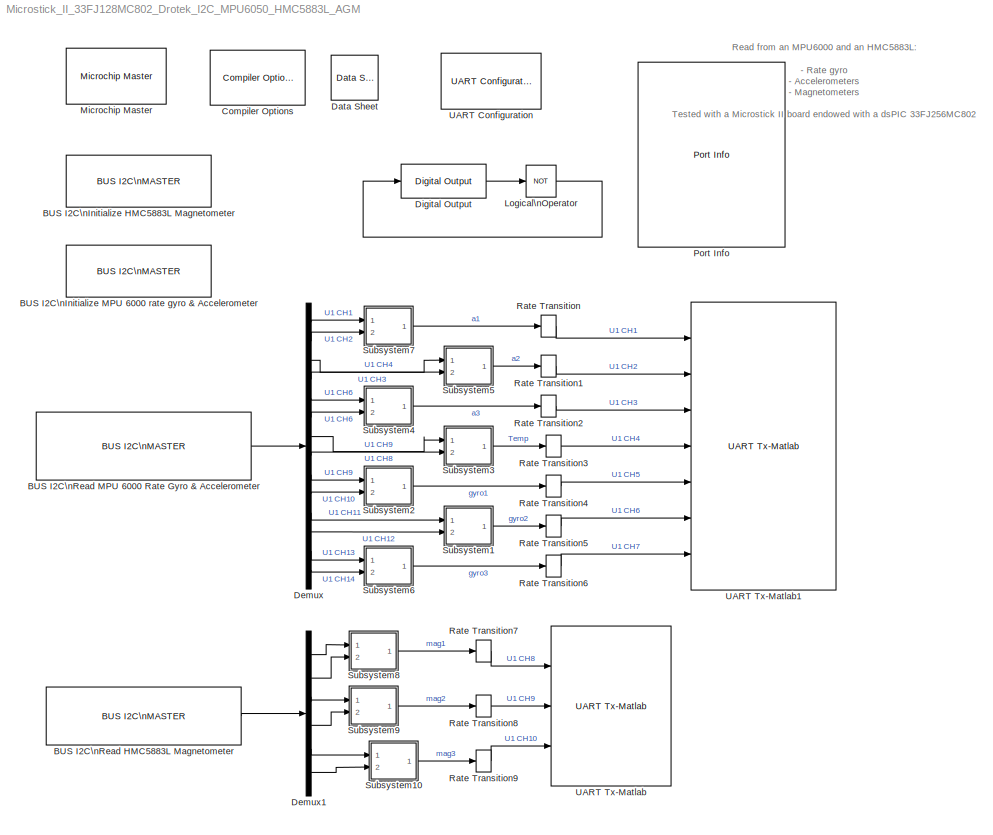
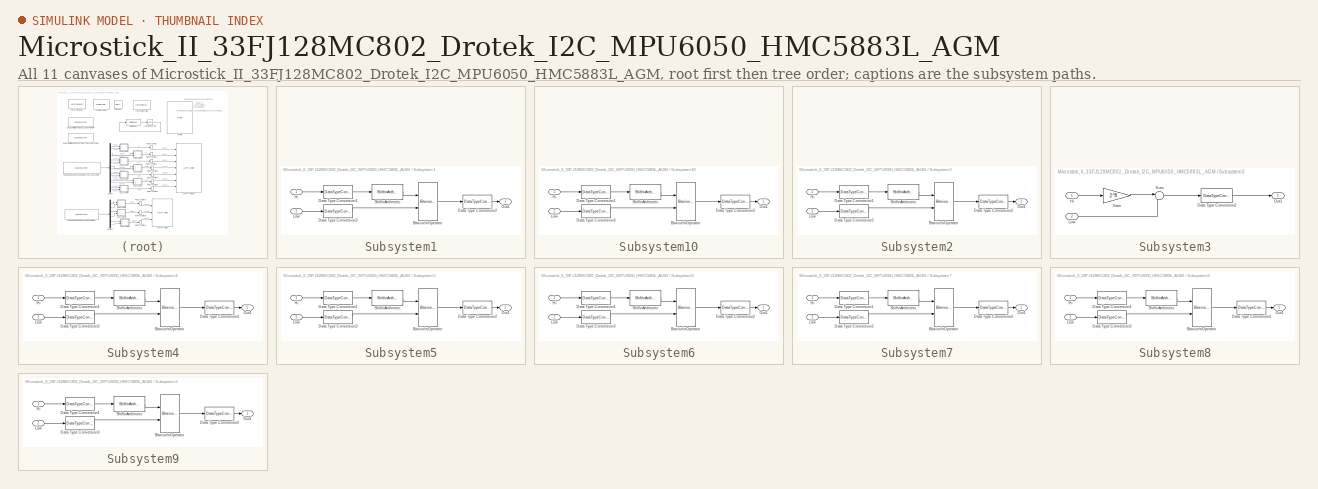
[diagram: thumbnail index - all 11 canvases of the model, root first then tree order]
MODEL Microstick_II_33FJ128MC802_Drotek_I2C_MPU6050_HMC5883L_AGM
KIND model
BLOCK [Reference] BUS I2C\nInitialize HMC5883L Magnetometer  REF=MCHP_Blockset/BUS I2C/BUS I2C\nMASTER
  BlockingMode = off
  I2CRef = 1
  I2C_IntPriority = 5
  I2Csequence_num = [BFF0000000000000 40E0600000000000 41186A0000000000 4118666E3C87173F]$[4070000000000000]$[0000000000000000 40E0600000000000 40F86A0000000000 410065D9C7810E65]$[3FF0000000000000 40E0600000000000 41186A0000000000 4118666E3C87173F]$[4040000000000000 0000000000000000 0000000000000000 403E000000000000]$[4050000000000000 3FF0000000000000 0000000000000000 0000000000000000 405E000000000000 000000000000000...<+159ch>
  I2Csequence_txt = Initial-Configuration$     ---     $Update-Configuration$Start$Write Address:{[0x1E]}    % HMC5883L Address$Write Data (x1)  Write:{[0x00 0x78 0x00 0x00]}      % Configure$Stop$Update-Configuration
  InitialConfigurationNum = 0
  MCHP_MASTERLINK = Microstick_II_33FJ128MC802_Drotek_I2C_MPU6050_HMC5883L_AGM/Microchip Master
  MCHP_PORT = {I2C 1 Clock}{SCL1}13:0:B8;{I2C 1 SDA}{SDA1}13:0:B9;
  ORDERING = 0
  PIN_SCL_TXT = B8 / Pin[17]
  PIN_SDA_TXT = B9 / Pin[18]
  Ports = []
  SID = 114
  S_INPUT = [5  5]
  S_INPUT_Size = [2  2]
  S_OUTPUT = [5]
  S_OUTPUT_Size = [4]
  SampleTime = inf
  SourceBlock = MCHP_Blockset/BUS I2C/BUS I2C\nMASTER
  SourceType = I2C Driver
BLOCK [Reference] BUS I2C\nInitialize MPU 6000 rate gyro & Accelerometer  REF=MCHP_Blockset/BUS I2C/BUS I2C\nMASTER
  BlockingMode = off
  I2CRef = 1
  I2C_IntPriority = 5
  I2Csequence_num = [BFF0000000000000 40E0600000000000 41186A0000000000 4118666E3C87173F]$[4070000000000000]$[3FF0000000000000 40E0200000000000 40F86A0000000000 40F866E066594CA2]$[4040000000000000 0000000000000000 0000000000000000 405A400000000000]$[4050000000000000 3FF0000000000000 0000000000000000 405AC00000000000 3FF0000000000000]$[4000000000000000 40E0600000000000 40F86A0000000000 40F866E066594CA2]$[3FF0000000000...<+282ch>
  I2Csequence_txt = Initial-Configuration$     ---     $Start$Write Address:{[0x69]}    % MPU 6000 addr with AD0 = 1$Write Data (x1)  Write:{[0x6B 0x01]}      % conf Pow Mngt 1$Stop$Start$Write Address:{[0x69]}    % MPU 6000 addr with AD0 = 1$Write Data (x1)  Write:{[0x37 0x02]}      % I2C Bypass$Stop
  InitialConfigurationNum = 0
  MCHP_MASTERLINK = Microstick_II_33FJ128MC802_Drotek_I2C_MPU6050_HMC5883L_AGM/Microchip Master
  MCHP_PORT = {I2C 1 Clock}{SCL1}13:0:B8;{I2C 1 SDA}{SDA1}13:0:B9;
  ORDERING = 0
  PIN_SCL_TXT = B8 / Pin[17]
  PIN_SDA_TXT = B9 / Pin[18]
  Ports = []
  SID = 113
  S_INPUT = [5  5]
  S_INPUT_Size = [2  2]
  S_OUTPUT = [5]
  S_OUTPUT_Size = [4]
  SampleTime = inf
  SourceBlock = MCHP_Blockset/BUS I2C/BUS I2C\nMASTER
  SourceType = I2C Driver
BLOCK [Reference] BUS I2C\nRead HMC5883L Magnetometer  REF=MCHP_Blockset/BUS I2C/BUS I2C\nMASTER
  BlockingMode = off
  I2CRef = 1
  I2C_IntPriority = 5
  I2Csequence_num = [BFF0000000000000 40E0600000000000 41186A0000000000 4118666E3C87173F]$[4070000000000000]$[0000000000000000 40E0600000000000 40F86A0000000000 410065D9C7810E65]$[3FF0000000000000 40E0200000000000 40F86A0000000000 40F866E066594CA2]$[4040000000000000 0000000000000000 0000000000000000 403E000000000000]$[4050000000000000 3FF0000000000000 0000000000000000 4008000000000000]$[4000000000000000 40E0600000000...<+354ch>
  I2Csequence_txt = Initial-Configuration$     ---     $Update-Configuration$Start$Write Address:{[0x1E]}    % HMC5883L Address$Write Data (x1)  Write:{[0x3]}  $Stop$Start$Write Address:{[0x1E]}    % HMC5883L Address$Read Data (x6)  Read:{Magn xyz}$Stop$Update-Configuration
  InitialConfigurationNum = 0
  MCHP_MASTERLINK = Microstick_II_33FJ128MC802_Drotek_I2C_MPU6050_HMC5883L_AGM/Microchip Master
  MCHP_PORT = {I2C 1 Clock}{SCL1}13:0:B8;{I2C 1 SDA}{SDA1}13:0:B9;
  ORDERING = 0
  PIN_SCL_TXT = B8 / Pin[17]
  PIN_SDA_TXT = B9 / Pin[18]
  Ports = [0, 1]
  SID = 21
  S_INPUT = [5  5]
  S_INPUT_Size = [2  2]
  S_OUTPUT = [5]
  S_OUTPUT_Size = [4]
  SampleTime = [.01]
  SourceBlock = MCHP_Blockset/BUS I2C/BUS I2C\nMASTER
  SourceType = I2C Driver
BLOCK [Reference] BUS I2C\nRead MPU 6000 Rate Gyro & Accelerometer  REF=MCHP_Blockset/BUS I2C/BUS I2C\nMASTER
  BlockingMode = off
  I2CRef = 1
  I2C_IntPriority = 5
  I2Csequence_num = [BFF0000000000000 40E0600000000000 41186A0000000000 4118666E3C87173F]$[4070000000000000]$[3FF0000000000000 40E0200000000000 40F86A0000000000 40F866E066594CA2]$[4040000000000000 0000000000000000 0000000000000000 405A400000000000]$[4050000000000000 3FF0000000000000 0000000000000000 404D800000000000]$[4000000000000000 40E0600000000000 40F86A0000000000 40F866E066594CA2]$[3FF0000000000000 40E0600000000...<+214ch>
  I2Csequence_txt = Initial-Configuration$     ---     $Start$Write Address:{[0x69]}    % MPU 6000 addr with AD0 = 1$Write Data (x1)  Write:{[0x3B]}      % Addr Accel Xout$Stop$Start$Write Address:{[0x69]}    % MPU 6000 addr with AD0 = 1$Read Data (x14)  Read:{Acc Gyr xyz}$Stop
  InitialConfigurationNum = 0
  MCHP_MASTERLINK = Microstick_II_33FJ128MC802_Drotek_I2C_MPU6050_HMC5883L_AGM/Microchip Master
  MCHP_PORT = {I2C 1 Clock}{SCL1}13:0:B8;{I2C 1 SDA}{SDA1}13:0:B9;
  ORDERING = 0
  PIN_SCL_TXT = B8 / Pin[17]
  PIN_SDA_TXT = B9 / Pin[18]
  Ports = [0, 1]
  SID = 20
  S_INPUT = [5  5]
  S_INPUT_Size = [2  2]
  S_OUTPUT = [5]
  S_OUTPUT_Size = [4]
  SampleTime = [.001]
  SourceBlock = MCHP_Blockset/BUS I2C/BUS I2C\nMASTER
  SourceType = I2C Driver
BLOCK [Reference] Compiler Options  REF=MCHP_Blockset/System Configuration/Compiler Options
  AssemblyListing = off
  COMP_LIST = Dynamic Options
  COMP_LIST_TXT = xc16 - v1.26
  DEBUG_INFO = off
  HEAP_SIZE = 0
  LATEST_CMPLR = on
  MCHP_MASTERLINK = Microstick_II_33FJ128MC802_Drotek_I2C_MPU6050_HMC5883L_AGM/Microchip Master
  MCHP_MULTITHREAD_COMPILATION = on
  MCODE = is less than 32768 (faster)
  MCONST = in code memory
  MDATA = Use only memory below address 8192 (faster)
  MPLAB_LINKLIB = default
  MPLAB_LINKLIB1 = default
  MSCALAR = Use only memory below address 8192 (faster)
  OMF = elf
  OMIT_FRAME_POINTER = off
  OPTIMIZATION_LEVEL = 3
  PROCEDURAL_ABSTRACTION = off
  Ports = []
  Priority = 1
  ProduceHexOutput = on
  SID = 2
  SourceBlock = MCHP_Blockset/System Configuration/Compiler Options
  UNROLL_LOOPS = on
  USE_64BIT_DOUBLE = off
BLOCK [Reference] Data Sheet  REF=MCHP_Blockset/System Info/Data Sheet
  AttributesFormatString = %<cpy_MCHP_Id>
  DOC_FileLastCheckTime = [0 0 0 0 0 0]
  DOC_MCHP_Id = 33FJ64MC802
  DOC_Type = datasheet
  MCHP_MASTERLINK = Microstick_II_33FJ128MC802_Drotek_I2C_MPU6050_HMC5883L_AGM/Microchip Master
  Ports = []
  SID = 6
  SourceBlock = MCHP_Blockset/System Info/Data Sheet
  cpy_MCHP_Id = 33FJ128MC802
BLOCK [Demux] Demux
  DisplayOption = bar
  Outputs = 14
  Ports = [1, 14]
  SID = 22
BLOCK [Demux] Demux1
  DisplayOption = bar
  Outputs = 6
  Ports = [1, 6]
  SID = 84
BLOCK [Reference] Digital Output  REF=MCHP_Blockset/Digital IO/Digital Output
  FunctionWithSeparateData = off
  MCHP_MASTERLINK = Microstick_II_33FJ128MC802_Drotek_I2C_MPU6050_HMC5883L_AGM/Microchip Master
  ORDERING = None
  PACK = off
  PIN = 0
  PORT = Dynamic Options
  PORT_TXT = A   [ 0 : 4 ]
  Ports = [1, 1]
  READPREVIOUS = on
  RTWMemSecDataConstants = Inherit from model
  RTWMemSecDataInternal = Inherit from model
  RTWMemSecDataParameters = Inherit from model
  RTWMemSecFuncExecute = Inherit from model
  RTWMemSecFuncInitTerm = Inherit from model
  SID = 9
  SIMULTANEOUS = off
  SampleTime = .05
  ShowPortLabels = FromPortIcon
  SourceBlock = MCHP_Blockset/Digital IO/Digital Output
  SystemSampleTime = -1
BLOCK [Logic] Logical\nOperator
  AllPortsSameDT = off
  Operator = NOT
  OutDataTypeMode = boolean
  OutDataTypeStr = boolean
  Ports = [1, 1]
  SID = 11
BLOCK [Reference] Microchip Master  REF=MCHP_Blockset/System Configuration/Microchip Master
  ACTIV_PLL = on
  ACTIV_PLL_spd = on
  AIVTDIS = Disable Alternate Vector Table
  ALTADREF = AVREF+/AVREF- are mapped to RA9/RA10
  ALTCMPI = C1INC is on RB13; C2INC is on RB9 and C3INC is on RA0
  ALTCVREF = CVREF+/CVREF- are mapped to RA9/RA10
  ALTI2C = I2C mapped to SDA1/SCL1 pins
  ALTI2C1 = I2C1 mapped to ASDA1/ASCL1 pins
  ALTI2C2 = I2C2 mapped to SDA2/SCL2 pins
  ALTPMP = EPMP pins are in default location mode
  ALTQIO = QEA1; QEB1; INDX1 are selected as inputs to QEI1
  ALTRB6 = Append the RP6/ASCL1/PMPD6 functions of RB6 to RA1 pin functions
  ALTSS1 = SS1A is selected as the I/O pin for SPI1
  ALTVREF = Voltage reference input; ADC =RA9/RA10 Comparator =RA9;RA10
  APL = Aux Flash Code protect is disabled
  APLK = Aux Flash Write Protection or Code Protection is Enabled
  ATMOD8 = Not used
  AWRP = Aux Flash may be written
  BACKBUG = Not used
  BKBUG = Device resets into Operational mode
  BODENV = 2.7V
  BOOTISA = Boot code and Exception code is MIPS32
  BOREN = Disable
  BOREN0 = Enabled
  BOREN1 = BOR Enabled [When BOREN=1]
  BORV = Brown-out Reset set at 2.0V
  BSEN = No Boot Segment
  BSLIM = Not used
  BSS = No boot program Flash segment
  BSS2 = No Boot Segment
  BTMODE = Device is in Single Boot (legacy) mode
  BTSWP = Not used
  BUSYFLAG = Dynamic Options
  BUSYFLAG_TXT = None
  BWP = Protection Disabled
  BWRP = Boot Segment may be written
  CMPPOL0 = Hysteresis is applied to falling edge
  CMPPOL1 = Hysteresis is applied to falling edge
  COE = Reset Into Operational Mode
  CP = Protection Disabled
  CSEQ = Not used
  CSS = No Protection (other than CWRP)
  CTXT1 = Not Assigned
  CTXT2 = Not Assigned
  CWRP = Configuration Segment may be written
  DBCC = Not used
  DBGPER = Allow CPU access to all permission regions
  DEBUG = Debugger is disabled
  DFMCY = Not used
  DISUVREG = Regulator is disabled
  DMTCNT = 2^31 (2147483648)
  DMTEN = Dead Man Timer is Enabled and cannot be disabled by software
  DMTINTV = Window/Interval value is 127/128 counter value
  DMTIVT = Not used
  DSBOREN = Deep Sleep BOR enabled in Deep Sleep
  DSLPBOR = Deep Sleep BOR enabled in Deep Sleep
  DSSWEN = Deep Sleep is controlled by the register bit DSEN
  DSWDTEN = DSWDT enabled
  DSWDTOSC = DSWDT uses Low Power RC Oscillator (LPRC)
  DSWDTPS = 1:2;147;483;648 (25.7 Days)
  EBS = No Boot EEPROM
  EJTAGBEN = Normal EJTAG functionality
  ESS = No Segment Data EEPROM
  EXTDDRSIZE = External DDR2 Size is 128 MB
  FCANIO = Default CAN I/O
  FCKSM = Clock switching is enabled; Fail-Safe Clock Monitor is disabled
  FCKSMEN = Sw Disabled; Mon Disabled
  FDMTEN = Deadman Timer is disabled
  FECCCON = ECC and Dynamic ECC are disabled (ECCCON bits are writable)
  FETHIO = Default Ethernet I/O
  FMIIEN = MII Enabled
  FNOSC = Primary oscillator (XT; HS; EC)
  FOS = Internal Fast RC
  FOSFPR = HS3 w/PLL 16x
  FPBDIV = Pb_Clk is Sys_Clk/8
  FPLLICLK = FRC is input to the System PLL
  FPLLIDIV = 12x Divider
  FPLLMUL = 24x Multiplier
  FPLLMULT = PLL Multiply by 128
  FPLLODIV = PLL Divide by 256
  FPLLRNG = 34-68 MHz Input
  FPR = ECIO w/ PLL 16x
  FPWRT = 64ms
  FRANGE = High Range
  FSLEEP = Flash is powered down when the device is in Sleep mode
  FSOSCEN = Enabled
  FSRSSEL = SRS Priority 7
  FUSBIDIO = Controlled by the USB Module
  FVBUSONIO = Controlled by USB Module
  FWDTEN = Disable
  FWDTWINSZ = Window size is 25%
  FWPSA = 1:512
  FWPSA0 = 1:128
  FWPSB = 1:16
  GCP = General Segment Code protect is disabled
  GSS = User program memory is not code-protected
  GSS0 = No protection
  GSSK = General Segment Write Protection or Code Protection is Enabled
  GWRP = General Segment may be written
  HPOL = PWM module high side output pins have active-high output polarity
  HYST0 = 45 mV Hysteresis
  HYST1 = 45 mV Hysteresis
  I2C1SEL = Use Default SCL1/SDA1 Pins For I2C1
  I2C2SEL = I2C2 is multiplexed to SDA2/RA3 and SCL2/RA2
  ICESEL = Communicate on PGEC1/PGED1
  ICS = Communicate on PGEC1 and PGED1
  IESO = Start up with FRC; then switch
  IOL1WAY = Allow Only One Re-configuration
  JTAGEN = Disable
  LPCFG = Disabled - regardless of RETEN
  LPOL = PWM module low side output pins have active-high output polarity
  LPRCSEL = High Power; High Accuracy Mode
  LVRCFG = Low Voltage regulator is not available
  MCHPVAR = MCHP.fcy.periph=40000000;MCHP.fcy.MIPS=40000000;MCHP.PowerSave=0;MCHP.TimeStepFactor=MCHP_Fun.Hex2num('[3FF0000000000002]');MCHP.TimeStep_Timer=1;MCHP.NTIMERS=5;MCHP.id.name='33FJ128MC802';MCHP.id.N=reshape([33 128 802],1,3);MCHP.id.L=reshape({ 'FJ','MC',''},1,3);MCHP.id.Arch=3;MCHP.periph.PPS.reg_RPINRx=reshape([-1 1 1 -1 -1 -1 1 1 1 1 -1 -1 -1 -1 1 1 -1 -1 -1 -1 1 1 -1 -1 1 -1 1 -1 1 1 1 -1 1 1 ...<+5250ch>
  MCHP_CRC = 3791631
  MCHP_PLLRegisters = [5    138  16385     -1]
  MCHP_TIMER_REQUEST = {Time Step}{TS}0:2:3:1:[]:40000;
  MCHP_TIMER_RESULT = [1 39998.999999999985 ]
  MCLRE = Enabled
  MIPS = 40 * 1e6
  MIPS_DESIRED = 40e6
  MIPS_DESIRED_spd = 40e6
  ON = Not used
  OSCILLATOR_SELECT = Crystal / Ceramic resonator
  OSCILLATOR_SELECT_spd = Crystal / Ceramic resonator
  OSCIOFCN = OSCO/CLKO/RA3 functions as CLKO (FOSC/2)
  OSCIOFNC = OSC2 pin has digital I/O function
  PGL1WAY = Allow only one reconfiguration
  PICREF = 33FJ128MC802
  PLL96MHZ = 96 MHz PLL Startup is enabled automatically on start-up
  PLLDIV = PLL is disabled
  PLLKEN = Clock switch to PLL source will wait until the PLL lock signal is valid.
  PLLSS = PLL is fed by the Primary oscillator
  PLL_96MHZ = Enabled
  PMDL1WAY = Allow only one reconfiguration
  POSCBOOST = Boost the kick start of the oscillator
  POSCFREQ = Primary oscillator/external clock input frequency greater than 8MHz
  POSCGAIN = 2x gain setting
  POSCMD = XT Oscillator Mode
  POSCMOD = Primary Oscillator Disabled
  POWERSAVE = off
  PWMLOCK = PWM registers may be written without key sequence
  PWMPIN = PWM module pins controlled by PORT register at device Reset
  PWP = Disable
  PWRTEN = PWRT enabled
  Ports = []
  Priority = 1
  QUARTZ = 8e+06
  QUARTZ_spd = 8e+06
  RBS = No Boot RAM
  RES = Not used
  RES1 = Not used
  RES2 = Not used
  RESERVED1 = Not used
  RETCFG = Retention regulator is not available
  RSS = No Secure RAM
  RSTPRI = Device will obtain reset instruction from Primary flash
  RTCBAT = RTC operation is continued through VBAT
  RTCOSC = RTCC uses Secondary Oscillator (SOSC)
  SEQNUM = Not used
  SID = 1
  SMCLR = MCLR pin generates a normal system Reset
  SOSCBOOST = Boost the kick start of the oscillator
  SOSCGAIN = 2x gain setting
  SOSCSEL = Secondary oscillator configured for high-power operation
  SOSCSRC = Analog Mode for use with crystal
  SSS = No Secure Segment
  SWRP = Secure segment may be written
  SourceBlock = MCHP_Blockset/System Configuration/Microchip Master
  TEMP = Not used
  TIMESTEP_REF = Timer  ( 0.001s )
  TRCEN = Trace features in the CPU are enabled
  TSEQ = Not used
  UPLLEN = Disabled and bypassed
  UPLLFSEL = USB PLL input is 24 MHz
  UPLLIDIV = 12x Divider
  USERID = Not used
  VBTBOR = VBAT BOR enabled
  WDT = Disable
  WDTCLK = WDT uses LPRC
  WDTCMX = WDT clock source is determined by the WDTCLK Configuration bits
  WDTEN = Disable
  WDTPOST = 1:32768
  WDTPRE = 1:128
  WDTPS = 1:32768
  WDTSPGM = WDT stops during Flash programming
  WDTWIN = WDT Window is 25% of WDT period
  WINDIS = Watchdog Timer in Non-Window mode
  WPCFG = Disable
  WPDIS = Disable
  WPEND = Write Protect from WPFP to the last page of memory
  WPFP = Page 127 (0x1FC00)
  WUTSEL = Default regulator start-up time used
  WWDTEN = Non-Window mode
  nSEQNUM = Not used
BLOCK [Reference] Port Info  REF=MCHP_Blockset/System Info/Port Info
  MCHP_MASTERLINK = Microstick_II_33FJ128MC802_Drotek_I2C_MPU6050_HMC5883L_AGM/Microchip Master
  Ports = []
  SID = 132
  SourceBlock = MCHP_Blockset/System Info/Port Info
BLOCK [RateTransition] Rate Transition
  OutPortSampleTime = .005
  SID = 134
BLOCK [RateTransition] Rate Transition1
  OutPortSampleTime = .005
  SID = 135
BLOCK [RateTransition] Rate Transition2
  OutPortSampleTime = .005
  SID = 136
BLOCK [RateTransition] Rate Transition3
  OutPortSampleTime = .005
  SID = 137
BLOCK [RateTransition] Rate Transition4
  OutPortSampleTime = .005
  SID = 138
BLOCK [RateTransition] Rate Transition5
  OutPortSampleTime = .005
  SID = 139
BLOCK [RateTransition] Rate Transition6
  OutPortSampleTime = .005
  SID = 140
BLOCK [RateTransition] Rate Transition7
  OutPortSampleTime = .005
  SID = 141
BLOCK [RateTransition] Rate Transition8
  OutPortSampleTime = .005
  SID = 142
BLOCK [RateTransition] Rate Transition9
  OutPortSampleTime = .005
  SID = 143
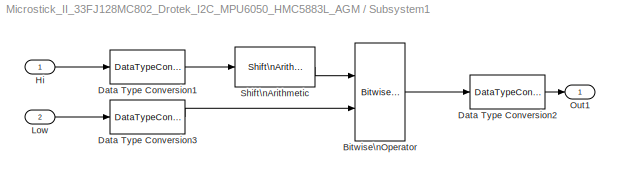
BLOCK [SubSystem] Subsystem1
  FunctionWithSeparateData = off
  MaskHideContents = off
  MinAlgLoopOccurrences = off
  Opaque = off
  Ports = [2, 1]
  PropExecContextOutsideSubsystem = off
  RTWSystemCode = Auto
  RequestExecContextInheritance = off
  SID = 23
BLOCK [Reference] Subsystem1/Bitwise\nOperator  REF=simulink/Logic and Bit\nOperations/Bitwise\nOperator
  BitMask = bin2dec('11011001')
  BitMaskRealWorld = Stored Integer
  NumInputPorts = 2
  Ports = [2, 1]
  SID = 26
  SourceBlock = simulink/Logic and Bit\nOperations/Bitwise\nOperator
  SourceType = Bitwise Operator
  UseBitMask = off
  logicop = OR
BLOCK [DataTypeConversion] Subsystem1/Data Type Conversion1
  ConvertRealWorld = Stored Integer (SI)
  OutDataTypeMode = uint16
  OutDataTypeStr = uint16
  RndMeth = Floor
  SID = 27
  SaturateOnIntegerOverflow = off
BLOCK [DataTypeConversion] Subsystem1/Data Type Conversion2
  ConvertRealWorld = Stored Integer (SI)
  OutDataTypeMode = int16
  OutDataTypeStr = int16
  RndMeth = Floor
  SID = 28
  SaturateOnIntegerOverflow = off
BLOCK [DataTypeConversion] Subsystem1/Data Type Conversion3
  ConvertRealWorld = Stored Integer (SI)
  OutDataTypeMode = uint16
  OutDataTypeStr = uint16
  RndMeth = Floor
  SID = 29
  SaturateOnIntegerOverflow = off
BLOCK [Inport] Subsystem1/Hi
  IconDisplay = Port number
  SID = 24
BLOCK [Inport] Subsystem1/Low
  IconDisplay = Port number
  Port = 2
  SID = 25
BLOCK [Outport] Subsystem1/Out1
  IconDisplay = Port number
  SID = 31
BLOCK [Reference] Subsystem1/Shift\nArithmetic  REF=simulink/Logic and Bit\nOperations/Shift\nArithmetic
  FunctionWithSeparateData = off
  Ports = [1, 1]
  RTWMemSecDataConstants = Inherit from model
  RTWMemSecDataInternal = Inherit from model
  RTWMemSecDataParameters = Inherit from model
  RTWMemSecFuncExecute = Inherit from model
  RTWMemSecFuncInitTerm = Inherit from model
  SID = 163
  ShowPortLabels = FromPortIcon
  SourceBlock = simulink/Logic and Bit\nOperations/Shift\nArithmetic
  SourceType = Shift Arithmetic
  SystemSampleTime = -1
  nBinPtShiftRight = 0
  nBitShiftRight = 8
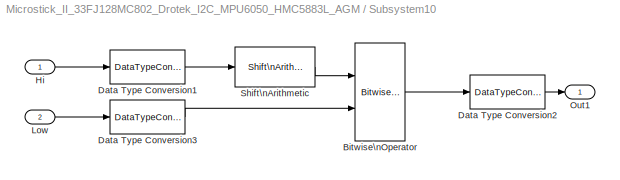
BLOCK [SubSystem] Subsystem10
  FunctionWithSeparateData = off
  MaskHideContents = off
  MinAlgLoopOccurrences = off
  Opaque = off
  Ports = [2, 1]
  PropExecContextOutsideSubsystem = off
  RTWSystemCode = Auto
  RequestExecContextInheritance = off
  SID = 85
BLOCK [Reference] Subsystem10/Bitwise\nOperator  REF=simulink/Logic and Bit\nOperations/Bitwise\nOperator
  BitMask = bin2dec('11011001')
  BitMaskRealWorld = Stored Integer
  NumInputPorts = 2
  Ports = [2, 1]
  SID = 88
  SourceBlock = simulink/Logic and Bit\nOperations/Bitwise\nOperator
  SourceType = Bitwise Operator
  UseBitMask = off
  logicop = OR
BLOCK [DataTypeConversion] Subsystem10/Data Type Conversion1
  ConvertRealWorld = Stored Integer (SI)
  OutDataTypeMode = uint16
  OutDataTypeStr = uint16
  RndMeth = Floor
  SID = 89
  SaturateOnIntegerOverflow = off
BLOCK [DataTypeConversion] Subsystem10/Data Type Conversion2
  ConvertRealWorld = Stored Integer (SI)
  OutDataTypeMode = int16
  OutDataTypeStr = int16
  RndMeth = Floor
  SID = 90
  SaturateOnIntegerOverflow = off
BLOCK [DataTypeConversion] Subsystem10/Data Type Conversion3
  ConvertRealWorld = Stored Integer (SI)
  OutDataTypeMode = uint16
  OutDataTypeStr = uint16
  RndMeth = Floor
  SID = 91
  SaturateOnIntegerOverflow = off
BLOCK [Inport] Subsystem10/Hi
  IconDisplay = Port number
  SID = 86
BLOCK [Inport] Subsystem10/Low
  IconDisplay = Port number
  Port = 2
  SID = 87
BLOCK [Outport] Subsystem10/Out1
  IconDisplay = Port number
  SID = 93
BLOCK [Reference] Subsystem10/Shift\nArithmetic  REF=simulink/Logic and Bit\nOperations/Shift\nArithmetic
  FunctionWithSeparateData = off
  Ports = [1, 1]
  RTWMemSecDataConstants = Inherit from model
  RTWMemSecDataInternal = Inherit from model
  RTWMemSecDataParameters = Inherit from model
  RTWMemSecFuncExecute = Inherit from model
  RTWMemSecFuncInitTerm = Inherit from model
  SID = 164
  ShowPortLabels = FromPortIcon
  SourceBlock = simulink/Logic and Bit\nOperations/Shift\nArithmetic
  SourceType = Shift Arithmetic
  SystemSampleTime = -1
  nBinPtShiftRight = 0
  nBitShiftRight = 8
BLOCK [SubSystem] Subsystem2
  FunctionWithSeparateData = off
  MaskHideContents = off
  MinAlgLoopOccurrences = off
  Opaque = off
  Ports = [2, 1]
  PropExecContextOutsideSubsystem = off
  RTWSystemCode = Auto
  RequestExecContextInheritance = off
  SID = 32
BLOCK [Reference] Subsystem2/Bitwise\nOperator  REF=simulink/Logic and Bit\nOperations/Bitwise\nOperator
  BitMask = bin2dec('11011001')
  BitMaskRealWorld = Stored Integer
  NumInputPorts = 2
  Ports = [2, 1]
  SID = 35
  SourceBlock = simulink/Logic and Bit\nOperations/Bitwise\nOperator
  SourceType = Bitwise Operator
  UseBitMask = off
  logicop = OR
BLOCK [DataTypeConversion] Subsystem2/Data Type Conversion1
  ConvertRealWorld = Stored Integer (SI)
  OutDataTypeMode = uint16
  OutDataTypeStr = uint16
  RndMeth = Floor
  SID = 36
  SaturateOnIntegerOverflow = off
BLOCK [DataTypeConversion] Subsystem2/Data Type Conversion2
  ConvertRealWorld = Stored Integer (SI)
  OutDataTypeMode = int16
  OutDataTypeStr = int16
  RndMeth = Floor
  SID = 37
  SaturateOnIntegerOverflow = off
BLOCK [DataTypeConversion] Subsystem2/Data Type Conversion3
  ConvertRealWorld = Stored Integer (SI)
  OutDataTypeMode = uint16
  OutDataTypeStr = uint16
  RndMeth = Floor
  SID = 38
  SaturateOnIntegerOverflow = off
BLOCK [Inport] Subsystem2/Hi
  IconDisplay = Port number
  SID = 33
BLOCK [Inport] Subsystem2/Low
  IconDisplay = Port number
  Port = 2
  SID = 34
BLOCK [Outport] Subsystem2/Out1
  IconDisplay = Port number
  SID = 40
BLOCK [Reference] Subsystem2/Shift\nArithmetic  REF=simulink/Logic and Bit\nOperations/Shift\nArithmetic
  FunctionWithSeparateData = off
  Ports = [1, 1]
  RTWMemSecDataConstants = Inherit from model
  RTWMemSecDataInternal = Inherit from model
  RTWMemSecDataParameters = Inherit from model
  RTWMemSecFuncExecute = Inherit from model
  RTWMemSecFuncInitTerm = Inherit from model
  SID = 165
  ShowPortLabels = FromPortIcon
  SourceBlock = simulink/Logic and Bit\nOperations/Shift\nArithmetic
  SourceType = Shift Arithmetic
  SystemSampleTime = -1
  nBinPtShiftRight = 0
  nBitShiftRight = 8
BLOCK [SubSystem] Subsystem3
  FunctionWithSeparateData = off
  MaskHideContents = off
  MinAlgLoopOccurrences = off
  Opaque = off
  Ports = [2, 1]
  PropExecContextOutsideSubsystem = off
  RTWSystemCode = Auto
  RequestExecContextInheritance = off
  SID = 41
BLOCK [DataTypeConversion] Subsystem3/Data Type Conversion2
  ConvertRealWorld = Stored Integer (SI)
  OutDataTypeMode = int16
  OutDataTypeStr = int16
  RndMeth = Floor
  SID = 44
  SaturateOnIntegerOverflow = off
BLOCK [Gain] Subsystem3/Gain
  Gain = 2^8
  OutDataTypeMode = uint16
  OutDataTypeStr = uint16
  ParamDataTypeStr = Inherit: Inherit via internal rule
  ParameterDataTypeMode = Inherit via internal rule
  SID = 45
  SaturateOnIntegerOverflow = off
BLOCK [Inport] Subsystem3/Hi
  IconDisplay = Port number
  SID = 42
BLOCK [Inport] Subsystem3/Low
  IconDisplay = Port number
  Port = 2
  SID = 43
BLOCK [Outport] Subsystem3/Out1
  IconDisplay = Port number
  SID = 47
BLOCK [Sum] Subsystem3/Sum
  AccumDataTypeStr = uint16
  IconShape = round
  InputSameDT = off
  Inputs = |++
  OutDataTypeMode = Same as accumulator
  OutDataTypeStr = Inherit: Same as accumulator
  Ports = [2, 1]
  SID = 46
  SaturateOnIntegerOverflow = off
BLOCK [SubSystem] Subsystem4
  FunctionWithSeparateData = off
  MaskHideContents = off
  MinAlgLoopOccurrences = off
  Opaque = off
  Ports = [2, 1]
  PropExecContextOutsideSubsystem = off
  RTWSystemCode = Auto
  RequestExecContextInheritance = off
  SID = 48
BLOCK [Reference] Subsystem4/Bitwise\nOperator  REF=simulink/Logic and Bit\nOperations/Bitwise\nOperator
  BitMask = bin2dec('11011001')
  BitMaskRealWorld = Stored Integer
  NumInputPorts = 2
  Ports = [2, 1]
  SID = 51
  SourceBlock = simulink/Logic and Bit\nOperations/Bitwise\nOperator
  SourceType = Bitwise Operator
  UseBitMask = off
  logicop = OR
BLOCK [DataTypeConversion] Subsystem4/Data Type Conversion1
  ConvertRealWorld = Stored Integer (SI)
  OutDataTypeMode = uint16
  OutDataTypeStr = uint16
  RndMeth = Floor
  SID = 52
  SaturateOnIntegerOverflow = off
BLOCK [DataTypeConversion] Subsystem4/Data Type Conversion2
  ConvertRealWorld = Stored Integer (SI)
  OutDataTypeMode = int16
  OutDataTypeStr = int16
  RndMeth = Floor
  SID = 53
  SaturateOnIntegerOverflow = off
BLOCK [DataTypeConversion] Subsystem4/Data Type Conversion3
  ConvertRealWorld = Stored Integer (SI)
  OutDataTypeMode = uint16
  OutDataTypeStr = uint16
  RndMeth = Floor
  SID = 54
  SaturateOnIntegerOverflow = off
BLOCK [Inport] Subsystem4/Hi
  IconDisplay = Port number
  SID = 49
BLOCK [Inport] Subsystem4/Low
  IconDisplay = Port number
  Port = 2
  SID = 50
BLOCK [Outport] Subsystem4/Out1
  IconDisplay = Port number
  SID = 56
BLOCK [Reference] Subsystem4/Shift\nArithmetic  REF=simulink/Logic and Bit\nOperations/Shift\nArithmetic
  FunctionWithSeparateData = off
  Ports = [1, 1]
  RTWMemSecDataConstants = Inherit from model
  RTWMemSecDataInternal = Inherit from model
  RTWMemSecDataParameters = Inherit from model
  RTWMemSecFuncExecute = Inherit from model
  RTWMemSecFuncInitTerm = Inherit from model
  SID = 166
  ShowPortLabels = FromPortIcon
  SourceBlock = simulink/Logic and Bit\nOperations/Shift\nArithmetic
  SourceType = Shift Arithmetic
  SystemSampleTime = -1
  nBinPtShiftRight = 0
  nBitShiftRight = 8
BLOCK [SubSystem] Subsystem5
  FunctionWithSeparateData = off
  MaskHideContents = off
  MinAlgLoopOccurrences = off
  Opaque = off
  Ports = [2, 1]
  PropExecContextOutsideSubsystem = off
  RTWSystemCode = Auto
  RequestExecContextInheritance = off
  SID = 57
BLOCK [Reference] Subsystem5/Bitwise\nOperator  REF=simulink/Logic and Bit\nOperations/Bitwise\nOperator
  BitMask = bin2dec('11011001')
  BitMaskRealWorld = Stored Integer
  NumInputPorts = 2
  Ports = [2, 1]
  SID = 60
  SourceBlock = simulink/Logic and Bit\nOperations/Bitwise\nOperator
  SourceType = Bitwise Operator
  UseBitMask = off
  logicop = OR
BLOCK [DataTypeConversion] Subsystem5/Data Type Conversion1
  ConvertRealWorld = Stored Integer (SI)
  OutDataTypeMode = uint16
  OutDataTypeStr = uint16
  RndMeth = Floor
  SID = 61
  SaturateOnIntegerOverflow = off
BLOCK [DataTypeConversion] Subsystem5/Data Type Conversion2
  ConvertRealWorld = Stored Integer (SI)
  OutDataTypeMode = int16
  OutDataTypeStr = int16
  RndMeth = Floor
  SID = 62
  SaturateOnIntegerOverflow = off
BLOCK [DataTypeConversion] Subsystem5/Data Type Conversion3
  ConvertRealWorld = Stored Integer (SI)
  OutDataTypeMode = uint16
  OutDataTypeStr = uint16
  RndMeth = Floor
  SID = 63
  SaturateOnIntegerOverflow = off
BLOCK [Inport] Subsystem5/Hi
  IconDisplay = Port number
  SID = 58
BLOCK [Inport] Subsystem5/Low
  IconDisplay = Port number
  Port = 2
  SID = 59
BLOCK [Outport] Subsystem5/Out1
  IconDisplay = Port number
  SID = 65
BLOCK [Reference] Subsystem5/Shift\nArithmetic  REF=simulink/Logic and Bit\nOperations/Shift\nArithmetic
  FunctionWithSeparateData = off
  Ports = [1, 1]
  RTWMemSecDataConstants = Inherit from model
  RTWMemSecDataInternal = Inherit from model
  RTWMemSecDataParameters = Inherit from model
  RTWMemSecFuncExecute = Inherit from model
  RTWMemSecFuncInitTerm = Inherit from model
  SID = 167
  ShowPortLabels = FromPortIcon
  SourceBlock = simulink/Logic and Bit\nOperations/Shift\nArithmetic
  SourceType = Shift Arithmetic
  SystemSampleTime = -1
  nBinPtShiftRight = 0
  nBitShiftRight = 8
BLOCK [SubSystem] Subsystem6
  FunctionWithSeparateData = off
  MaskHideContents = off
  MinAlgLoopOccurrences = off
  Opaque = off
  Ports = [2, 1]
  PropExecContextOutsideSubsystem = off
  RTWSystemCode = Auto
  RequestExecContextInheritance = off
  SID = 66
BLOCK [Reference] Subsystem6/Bitwise\nOperator  REF=simulink/Logic and Bit\nOperations/Bitwise\nOperator
  BitMask = bin2dec('11011001')
  BitMaskRealWorld = Stored Integer
  NumInputPorts = 2
  Ports = [2, 1]
  SID = 69
  SourceBlock = simulink/Logic and Bit\nOperations/Bitwise\nOperator
  SourceType = Bitwise Operator
  UseBitMask = off
  logicop = OR
BLOCK [DataTypeConversion] Subsystem6/Data Type Conversion1
  ConvertRealWorld = Stored Integer (SI)
  OutDataTypeMode = uint16
  OutDataTypeStr = uint16
  RndMeth = Floor
  SID = 70
  SaturateOnIntegerOverflow = off
BLOCK [DataTypeConversion] Subsystem6/Data Type Conversion2
  ConvertRealWorld = Stored Integer (SI)
  OutDataTypeMode = int16
  OutDataTypeStr = int16
  RndMeth = Floor
  SID = 71
  SaturateOnIntegerOverflow = off
BLOCK [DataTypeConversion] Subsystem6/Data Type Conversion3
  ConvertRealWorld = Stored Integer (SI)
  OutDataTypeMode = uint16
  OutDataTypeStr = uint16
  RndMeth = Floor
  SID = 72
  SaturateOnIntegerOverflow = off
BLOCK [Inport] Subsystem6/Hi
  IconDisplay = Port number
  SID = 67
BLOCK [Inport] Subsystem6/Low
  IconDisplay = Port number
  Port = 2
  SID = 68
BLOCK [Outport] Subsystem6/Out1
  IconDisplay = Port number
  SID = 74
BLOCK [Reference] Subsystem6/Shift\nArithmetic  REF=simulink/Logic and Bit\nOperations/Shift\nArithmetic
  FunctionWithSeparateData = off
  Ports = [1, 1]
  RTWMemSecDataConstants = Inherit from model
  RTWMemSecDataInternal = Inherit from model
  RTWMemSecDataParameters = Inherit from model
  RTWMemSecFuncExecute = Inherit from model
  RTWMemSecFuncInitTerm = Inherit from model
  SID = 168
  ShowPortLabels = FromPortIcon
  SourceBlock = simulink/Logic and Bit\nOperations/Shift\nArithmetic
  SourceType = Shift Arithmetic
  SystemSampleTime = -1
  nBinPtShiftRight = 0
  nBitShiftRight = 8
BLOCK [SubSystem] Subsystem7
  FunctionWithSeparateData = off
  MaskHideContents = off
  MinAlgLoopOccurrences = off
  Opaque = off
  Ports = [2, 1]
  PropExecContextOutsideSubsystem = off
  RTWSystemCode = Auto
  RequestExecContextInheritance = off
  SID = 75
BLOCK [Reference] Subsystem7/Bitwise\nOperator  REF=simulink/Logic and Bit\nOperations/Bitwise\nOperator
  BitMask = bin2dec('11011001')
  BitMaskRealWorld = Stored Integer
  NumInputPorts = 2
  Ports = [2, 1]
  SID = 78
  SourceBlock = simulink/Logic and Bit\nOperations/Bitwise\nOperator
  SourceType = Bitwise Operator
  UseBitMask = off
  logicop = OR
BLOCK [DataTypeConversion] Subsystem7/Data Type Conversion1
  ConvertRealWorld = Stored Integer (SI)
  OutDataTypeMode = uint16
  OutDataTypeStr = uint16
  RndMeth = Floor
  SID = 79
  SaturateOnIntegerOverflow = off
BLOCK [DataTypeConversion] Subsystem7/Data Type Conversion2
  ConvertRealWorld = Stored Integer (SI)
  OutDataTypeMode = int16
  OutDataTypeStr = int16
  RndMeth = Floor
  SID = 80
  SaturateOnIntegerOverflow = off
BLOCK [DataTypeConversion] Subsystem7/Data Type Conversion3
  ConvertRealWorld = Stored Integer (SI)
  OutDataTypeMode = uint16
  OutDataTypeStr = uint16
  RndMeth = Floor
  SID = 81
  SaturateOnIntegerOverflow = off
BLOCK [Inport] Subsystem7/Hi
  IconDisplay = Port number
  SID = 76
BLOCK [Inport] Subsystem7/Low
  IconDisplay = Port number
  Port = 2
  SID = 77
BLOCK [Outport] Subsystem7/Out1
  IconDisplay = Port number
  SID = 83
BLOCK [Reference] Subsystem7/Shift\nArithmetic  REF=simulink/Logic and Bit\nOperations/Shift\nArithmetic
  FunctionWithSeparateData = off
  Ports = [1, 1]
  RTWMemSecDataConstants = Inherit from model
  RTWMemSecDataInternal = Inherit from model
  RTWMemSecDataParameters = Inherit from model
  RTWMemSecFuncExecute = Inherit from model
  RTWMemSecFuncInitTerm = Inherit from model
  SID = 169
  ShowPortLabels = FromPortIcon
  SourceBlock = simulink/Logic and Bit\nOperations/Shift\nArithmetic
  SourceType = Shift Arithmetic
  SystemSampleTime = -1
  nBinPtShiftRight = 0
  nBitShiftRight = 8
BLOCK [SubSystem] Subsystem8
  FunctionWithSeparateData = off
  MaskHideContents = off
  MinAlgLoopOccurrences = off
  Opaque = off
  Ports = [2, 1]
  PropExecContextOutsideSubsystem = off
  RTWSystemCode = Auto
  RequestExecContextInheritance = off
  SID = 94
BLOCK [Reference] Subsystem8/Bitwise\nOperator  REF=simulink/Logic and Bit\nOperations/Bitwise\nOperator
  BitMask = bin2dec('11011001')
  BitMaskRealWorld = Stored Integer
  NumInputPorts = 2
  Ports = [2, 1]
  SID = 97
  SourceBlock = simulink/Logic and Bit\nOperations/Bitwise\nOperator
  SourceType = Bitwise Operator
  UseBitMask = off
  logicop = OR
BLOCK [DataTypeConversion] Subsystem8/Data Type Conversion1
  ConvertRealWorld = Stored Integer (SI)
  OutDataTypeMode = uint16
  OutDataTypeStr = uint16
  RndMeth = Floor
  SID = 98
  SaturateOnIntegerOverflow = off
BLOCK [DataTypeConversion] Subsystem8/Data Type Conversion2
  ConvertRealWorld = Stored Integer (SI)
  OutDataTypeMode = int16
  OutDataTypeStr = int16
  RndMeth = Floor
  SID = 99
  SaturateOnIntegerOverflow = off
BLOCK [DataTypeConversion] Subsystem8/Data Type Conversion3
  ConvertRealWorld = Stored Integer (SI)
  OutDataTypeMode = uint16
  OutDataTypeStr = uint16
  RndMeth = Floor
  SID = 100
  SaturateOnIntegerOverflow = off
BLOCK [Inport] Subsystem8/Hi
  IconDisplay = Port number
  SID = 95
BLOCK [Inport] Subsystem8/Low
  IconDisplay = Port number
  Port = 2
  SID = 96
BLOCK [Outport] Subsystem8/Out1
  IconDisplay = Port number
  SID = 102
BLOCK [Reference] Subsystem8/Shift\nArithmetic  REF=simulink/Logic and Bit\nOperations/Shift\nArithmetic
  FunctionWithSeparateData = off
  Ports = [1, 1]
  RTWMemSecDataConstants = Inherit from model
  RTWMemSecDataInternal = Inherit from model
  RTWMemSecDataParameters = Inherit from model
  RTWMemSecFuncExecute = Inherit from model
  RTWMemSecFuncInitTerm = Inherit from model
  SID = 170
  ShowPortLabels = FromPortIcon
  SourceBlock = simulink/Logic and Bit\nOperations/Shift\nArithmetic
  SourceType = Shift Arithmetic
  SystemSampleTime = -1
  nBinPtShiftRight = 0
  nBitShiftRight = 8
BLOCK [SubSystem] Subsystem9
  FunctionWithSeparateData = off
  MaskHideContents = off
  MinAlgLoopOccurrences = off
  Opaque = off
  Ports = [2, 1]
  PropExecContextOutsideSubsystem = off
  RTWSystemCode = Auto
  RequestExecContextInheritance = off
  SID = 103
BLOCK [Reference] Subsystem9/Bitwise\nOperator  REF=simulink/Logic and Bit\nOperations/Bitwise\nOperator
  BitMask = bin2dec('11011001')
  BitMaskRealWorld = Stored Integer
  NumInputPorts = 2
  Ports = [2, 1]
  SID = 106
  SourceBlock = simulink/Logic and Bit\nOperations/Bitwise\nOperator
  SourceType = Bitwise Operator
  UseBitMask = off
  logicop = OR
BLOCK [DataTypeConversion] Subsystem9/Data Type Conversion1
  ConvertRealWorld = Stored Integer (SI)
  OutDataTypeMode = uint16
  OutDataTypeStr = uint16
  RndMeth = Floor
  SID = 107
  SaturateOnIntegerOverflow = off
BLOCK [DataTypeConversion] Subsystem9/Data Type Conversion2
  ConvertRealWorld = Stored Integer (SI)
  OutDataTypeMode = int16
  OutDataTypeStr = int16
  RndMeth = Floor
  SID = 108
  SaturateOnIntegerOverflow = off
BLOCK [DataTypeConversion] Subsystem9/Data Type Conversion3
  ConvertRealWorld = Stored Integer (SI)
  OutDataTypeMode = uint16
  OutDataTypeStr = uint16
  RndMeth = Floor
  SID = 109
  SaturateOnIntegerOverflow = off
BLOCK [Inport] Subsystem9/Hi
  IconDisplay = Port number
  SID = 104
BLOCK [Inport] Subsystem9/Low
  IconDisplay = Port number
  Port = 2
  SID = 105
BLOCK [Outport] Subsystem9/Out1
  IconDisplay = Port number
  SID = 111
BLOCK [Reference] Subsystem9/Shift\nArithmetic  REF=simulink/Logic and Bit\nOperations/Shift\nArithmetic
  FunctionWithSeparateData = off
  Ports = [1, 1]
  RTWMemSecDataConstants = Inherit from model
  RTWMemSecDataInternal = Inherit from model
  RTWMemSecDataParameters = Inherit from model
  RTWMemSecFuncExecute = Inherit from model
  RTWMemSecFuncInitTerm = Inherit from model
  SID = 171
  ShowPortLabels = FromPortIcon
  SourceBlock = simulink/Logic and Bit\nOperations/Shift\nArithmetic
  SourceType = Shift Arithmetic
  SystemSampleTime = -1
  nBinPtShiftRight = 0
  nBitShiftRight = 8
BLOCK [Reference] UART Configuration  REF=MCHP_Blockset/BUS UART/UART Configuration
  ALT_IO = on
  BAUD_Choice = Dynamic Options
  BAUD_Choice_IR = Dynamic Options
  BAUD_Choice_IR_InitSeq = Dynamic Options
  BAUD_Choice_IR_InitSeq_TXT = 0
  BAUD_Choice_IR_TXT = []
  BAUD_Choice_InitSeq = Dynamic Options
  BAUD_Choice_InitSeq_TXT = 0
  BAUD_Choice_TXT = 115200         [-0.22%]
  BAUD_Custom = 115200
  BAUD_Custom_InitSeq = 0
  FlowControl = None
  IRDA = off
  InitSequence = 'Hello World'
  InitSequence_chkbox = off
  MCHP_COM_ExtPil = off
  MCHP_MASTERLINK = Microstick_II_33FJ128MC802_Drotek_I2C_MPU6050_HMC5883L_AGM/Microchip Master
  MCHP_PORT = {UART1  Tx}{U1TX}3:1:P10;
  PIN_CTS = Dynamic Options
  PIN_CTS_TXT = B0 / P0 / Pin[4]
  PIN_RTS = Dynamic Options
  PIN_RTS_TXT = B0 / P0 / Pin[4]
  PIN_RX = Dynamic Options
  PIN_RX_TXT = B11 / P11 / Pin[22]
  PIN_TX = Dynamic Options
  PIN_TX_TXT = B10 / P10 / Pin[21]
  Ports = []
  RX_CIRCULAR_SIZE = 32
  RX_IMPLEMENTATION = Do not implement Rx
  RX_INT_PRIORITY = 1
  RX_INT_WHEN = receive 1 character
  SID = 12
  SourceBlock = MCHP_Blockset/BUS UART/UART Configuration
  SourceType = Configuration for UART peripheral
  TX_CIRCULAR_SIZE = 32
  TX_DMA_CHANNEL = 0   (Lowest Priority)
  TX_DMA_SIZE = []
  TX_IMPLEMENTATION = Circular Buffer
  TX_INT_PRIORITY = 5
  TX_INT_WHEN = is empty & last char is sent
  UART_REF = 1
BLOCK [Reference] UART Tx-Matlab  REF=MCHP_Blockset/BUS UART/UART Tx-Matlab
  AllOrNothing = off
  CHANNELS = [8:10]
  MCHP_COMPILED_INFO = CompiledSampleTime= [0.0050000000000000001   0 ];CompiledInportDataTypes=[  4   4   4 ];CompiledInportDataWidth=[1  1  1];
  MCHP_MASTERLINK = Microstick_II_33FJ128MC802_Drotek_I2C_MPU6050_HMC5883L_AGM/Microchip Master
  Ports = [3]
  SID = 112
  SampleTime = -1
  SourceBlock = MCHP_Blockset/BUS UART/UART Tx-Matlab
  SourceType = Higl Level UART protocol
  UART_REF = 1
BLOCK [Reference] UART Tx-Matlab1  REF=MCHP_Blockset/BUS UART/UART Tx-Matlab
  AllOrNothing = off
  CHANNELS = [1:7]
  MCHP_COMPILED_INFO = CompiledSampleTime= [0.0050000000000000001   0 ];CompiledInportDataTypes=[  4   4   4   4   4   4   4 ];CompiledInportDataWidth=[1  1  1  1  1  1  1];
  MCHP_MASTERLINK = Microstick_II_33FJ128MC802_Drotek_I2C_MPU6050_HMC5883L_AGM/Microchip Master
  Ports = [7]
  SID = 115
  SampleTime = -1
  SourceBlock = MCHP_Blockset/BUS UART/UART Tx-Matlab
  SourceType = Higl Level UART protocol
  UART_REF = 1
ANNOTATION (root): Read from an MPU6000 and an HMC5883L:\n- Rate gyro\n- Accelerometers\n- Magnetometers\n\nTested with a Microstick II board endowed with a dsPIC 33FJ256MC802\nThe MS5611 I2C bus was connected to pins B8 (SCL) and B9 (SDA).\nThe sensor board IMU 10DOF V2 from Drotek was used for this test.\n\nNote the I2C speed reconfiguration
LINE BUS I2C\nRead HMC5883L Magnetometer:1 -> Demux1:1
LINE BUS I2C\nRead MPU 6000 Rate Gyro & Accelerometer:1 -> Demux:1
LINE Demux1:1 -> Subsystem8:1
LINE Demux1:2 -> Subsystem8:2
LINE Demux1:3 -> Subsystem9:1
LINE Demux1:4 -> Subsystem9:2
LINE Demux1:5 -> Subsystem10:1
LINE Demux1:6 -> Subsystem10:2
LINE Demux:1 -> Subsystem7:1
LINE Demux:10 -> Subsystem2:2
LINE Demux:11 -> Subsystem1:1
LINE Demux:12 -> Subsystem1:2
LINE Demux:13 -> Subsystem6:1
LINE Demux:14 -> Subsystem6:2
LINE Demux:2 -> Subsystem7:2
LINE Demux:3 -> Subsystem5:1
LINE Demux:4 -> Subsystem5:2
LINE Demux:5 -> Subsystem4:1
LINE Demux:6 -> Subsystem4:2
LINE Demux:7 -> Subsystem3:1
LINE Demux:8 -> Subsystem3:2
LINE Demux:9 -> Subsystem2:1
LINE Digital Output:1 -> Logical\nOperator:1
LINE Logical\nOperator:1 -> Digital Output:1
LINE Rate Transition1:1 -> UART Tx-Matlab1:2
LINE Rate Transition2:1 -> UART Tx-Matlab1:3
LINE Rate Transition3:1 -> UART Tx-Matlab1:4
LINE Rate Transition4:1 -> UART Tx-Matlab1:5
LINE Rate Transition5:1 -> UART Tx-Matlab1:6
LINE Rate Transition6:1 -> UART Tx-Matlab1:7
LINE Rate Transition7:1 -> UART Tx-Matlab:1
LINE Rate Transition8:1 -> UART Tx-Matlab:2
LINE Rate Transition9:1 -> UART Tx-Matlab:3
LINE Rate Transition:1 -> UART Tx-Matlab1:1
LINE Subsystem1/Bitwise\nOperator:1 -> Subsystem1/Data Type Conversion2:1
LINE Subsystem1/Data Type Conversion1:1 -> Subsystem1/Shift\nArithmetic:1
LINE Subsystem1/Data Type Conversion2:1 -> Subsystem1/Out1:1
LINE Subsystem1/Data Type Conversion3:1 -> Subsystem1/Bitwise\nOperator:2
LINE Subsystem1/Hi:1 -> Subsystem1/Data Type Conversion1:1
LINE Subsystem1/Low:1 -> Subsystem1/Data Type Conversion3:1
LINE Subsystem1/Shift\nArithmetic:1 -> Subsystem1/Bitwise\nOperator:1
LINE Subsystem10/Bitwise\nOperator:1 -> Subsystem10/Data Type Conversion2:1
LINE Subsystem10/Data Type Conversion1:1 -> Subsystem10/Shift\nArithmetic:1
LINE Subsystem10/Data Type Conversion2:1 -> Subsystem10/Out1:1
LINE Subsystem10/Data Type Conversion3:1 -> Subsystem10/Bitwise\nOperator:2
LINE Subsystem10/Hi:1 -> Subsystem10/Data Type Conversion1:1
LINE Subsystem10/Low:1 -> Subsystem10/Data Type Conversion3:1
LINE Subsystem10/Shift\nArithmetic:1 -> Subsystem10/Bitwise\nOperator:1
LINE Subsystem10:1 -> Rate Transition9:1
LINE Subsystem1:1 -> Rate Transition5:1
LINE Subsystem2/Bitwise\nOperator:1 -> Subsystem2/Data Type Conversion2:1
LINE Subsystem2/Data Type Conversion1:1 -> Subsystem2/Shift\nArithmetic:1
LINE Subsystem2/Data Type Conversion2:1 -> Subsystem2/Out1:1
LINE Subsystem2/Data Type Conversion3:1 -> Subsystem2/Bitwise\nOperator:2
LINE Subsystem2/Hi:1 -> Subsystem2/Data Type Conversion1:1
LINE Subsystem2/Low:1 -> Subsystem2/Data Type Conversion3:1
LINE Subsystem2/Shift\nArithmetic:1 -> Subsystem2/Bitwise\nOperator:1
LINE Subsystem2:1 -> Rate Transition4:1
LINE Subsystem3/Data Type Conversion2:1 -> Subsystem3/Out1:1
LINE Subsystem3/Gain:1 -> Subsystem3/Sum:1
LINE Subsystem3/Hi:1 -> Subsystem3/Gain:1
LINE Subsystem3/Low:1 -> Subsystem3/Sum:2
LINE Subsystem3/Sum:1 -> Subsystem3/Data Type Conversion2:1
LINE Subsystem3:1 -> Rate Transition3:1
LINE Subsystem4/Bitwise\nOperator:1 -> Subsystem4/Data Type Conversion2:1
LINE Subsystem4/Data Type Conversion1:1 -> Subsystem4/Shift\nArithmetic:1
LINE Subsystem4/Data Type Conversion2:1 -> Subsystem4/Out1:1
LINE Subsystem4/Data Type Conversion3:1 -> Subsystem4/Bitwise\nOperator:2
LINE Subsystem4/Hi:1 -> Subsystem4/Data Type Conversion1:1
LINE Subsystem4/Low:1 -> Subsystem4/Data Type Conversion3:1
LINE Subsystem4/Shift\nArithmetic:1 -> Subsystem4/Bitwise\nOperator:1
LINE Subsystem4:1 -> Rate Transition2:1
LINE Subsystem5/Bitwise\nOperator:1 -> Subsystem5/Data Type Conversion2:1
LINE Subsystem5/Data Type Conversion1:1 -> Subsystem5/Shift\nArithmetic:1
LINE Subsystem5/Data Type Conversion2:1 -> Subsystem5/Out1:1
LINE Subsystem5/Data Type Conversion3:1 -> Subsystem5/Bitwise\nOperator:2
LINE Subsystem5/Hi:1 -> Subsystem5/Data Type Conversion1:1
LINE Subsystem5/Low:1 -> Subsystem5/Data Type Conversion3:1
LINE Subsystem5/Shift\nArithmetic:1 -> Subsystem5/Bitwise\nOperator:1
LINE Subsystem5:1 -> Rate Transition1:1
LINE Subsystem6/Bitwise\nOperator:1 -> Subsystem6/Data Type Conversion2:1
LINE Subsystem6/Data Type Conversion1:1 -> Subsystem6/Shift\nArithmetic:1
LINE Subsystem6/Data Type Conversion2:1 -> Subsystem6/Out1:1
LINE Subsystem6/Data Type Conversion3:1 -> Subsystem6/Bitwise\nOperator:2
LINE Subsystem6/Hi:1 -> Subsystem6/Data Type Conversion1:1
LINE Subsystem6/Low:1 -> Subsystem6/Data Type Conversion3:1
LINE Subsystem6/Shift\nArithmetic:1 -> Subsystem6/Bitwise\nOperator:1
LINE Subsystem6:1 -> Rate Transition6:1
LINE Subsystem7/Bitwise\nOperator:1 -> Subsystem7/Data Type Conversion2:1
LINE Subsystem7/Data Type Conversion1:1 -> Subsystem7/Shift\nArithmetic:1
LINE Subsystem7/Data Type Conversion2:1 -> Subsystem7/Out1:1
LINE Subsystem7/Data Type Conversion3:1 -> Subsystem7/Bitwise\nOperator:2
LINE Subsystem7/Hi:1 -> Subsystem7/Data Type Conversion1:1
LINE Subsystem7/Low:1 -> Subsystem7/Data Type Conversion3:1
LINE Subsystem7/Shift\nArithmetic:1 -> Subsystem7/Bitwise\nOperator:1
LINE Subsystem7:1 -> Rate Transition:1
LINE Subsystem8/Bitwise\nOperator:1 -> Subsystem8/Data Type Conversion2:1
LINE Subsystem8/Data Type Conversion1:1 -> Subsystem8/Shift\nArithmetic:1
LINE Subsystem8/Data Type Conversion2:1 -> Subsystem8/Out1:1
LINE Subsystem8/Data Type Conversion3:1 -> Subsystem8/Bitwise\nOperator:2
LINE Subsystem8/Hi:1 -> Subsystem8/Data Type Conversion1:1
LINE Subsystem8/Low:1 -> Subsystem8/Data Type Conversion3:1
LINE Subsystem8/Shift\nArithmetic:1 -> Subsystem8/Bitwise\nOperator:1
LINE Subsystem8:1 -> Rate Transition7:1
LINE Subsystem9/Bitwise\nOperator:1 -> Subsystem9/Data Type Conversion2:1
LINE Subsystem9/Data Type Conversion1:1 -> Subsystem9/Shift\nArithmetic:1
LINE Subsystem9/Data Type Conversion2:1 -> Subsystem9/Out1:1
LINE Subsystem9/Data Type Conversion3:1 -> Subsystem9/Bitwise\nOperator:2
LINE Subsystem9/Hi:1 -> Subsystem9/Data Type Conversion1:1
LINE Subsystem9/Low:1 -> Subsystem9/Data Type Conversion3:1
LINE Subsystem9/Shift\nArithmetic:1 -> Subsystem9/Bitwise\nOperator:1
LINE Subsystem9:1 -> Rate Transition8:1
